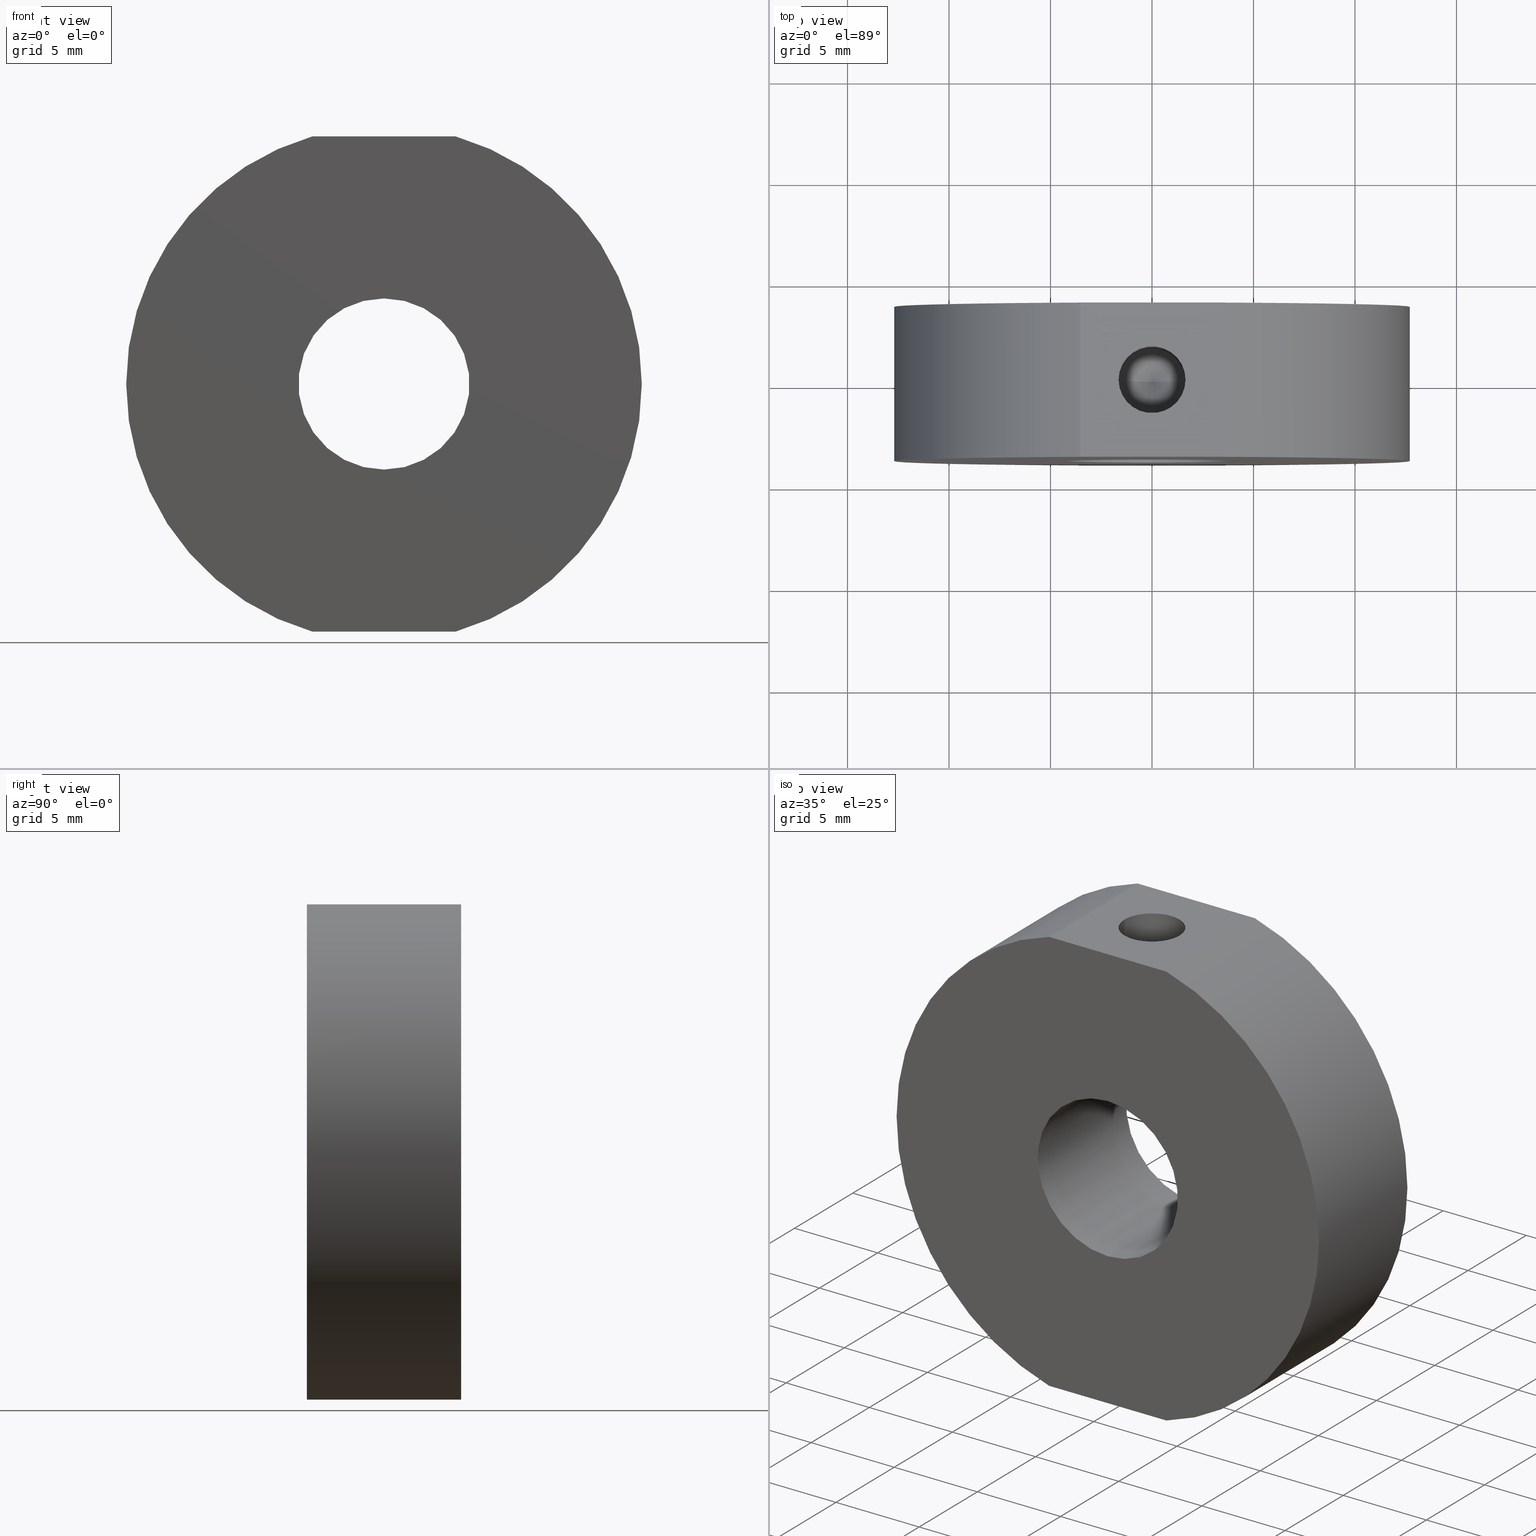
[diagram: canonical four-view strip — front | top / right | iso, engineering-drawing reading convention]
A machine part, canonical four-view strip (front | top / right | iso — engineering-drawing reading convention). The complete STEP part file that produces these views, byte-faithful:
ISO-10303-21;
HEADER;
FILE_DESCRIPTION (( 'STEP AP203' ),
    '1' );
FILE_NAME ('04CLH-1M.STEP',
    '2016-03-03T03:27:58',
    ( '' ),
    ( '' ),
    'SwSTEP 2.0',
    'SolidWorks 2016',
    '' );
FILE_SCHEMA (( 'CONFIG_CONTROL_DESIGN' ));
ENDSEC;

DATA;
#1 = LINE ( 'NONE', #286, #390 ) ;
#2 = EDGE_LOOP ( 'NONE', ( #139, #484, #486, #24 ) ) ;
#3 = DATE_AND_TIME ( #312, #393 ) ;
#4 = APPROVAL_ROLE ( '' ) ;
#5 = AXIS2_PLACEMENT_3D ( 'NONE', #301, #475, #227 ) ;
#6 = VERTEX_POINT ( 'NONE', #47 ) ;
#7 = LINE ( 'NONE', #411, #253 ) ;
#8 = APPROVAL_PERSON_ORGANIZATION ( #9, #35, #4 ) ;
#9 = PERSON_AND_ORGANIZATION ( #495, #212 ) ;
#10 = MANIFOLD_SOLID_BREP ( 'M4 ������1', #173 ) ;
#11 = ORIENTED_EDGE ( 'NONE', *, *, #90, .F. ) ;
#12 = DIRECTION ( 'NONE',  ( 0.0000000000000000000, 1.000000000000000000, 0.0000000000000000000 ) ) ;
#13 = PERSON_AND_ORGANIZATION ( #495, #212 ) ;
#14 = EDGE_CURVE ( 'NONE', #355, #6, #314, .T. ) ;
#15 = CYLINDRICAL_SURFACE ( 'NONE', #79, 2.499999999999999600 ) ;
#16 = DIRECTION ( 'NONE',  ( -0.0000000000000000000, 0.0000000000000000000, 1.000000000000000000 ) ) ;
#17 = CARTESIAN_POINT ( 'NONE',  ( -3.528455752875471400, -3.799999999999999400, -12.19999999999999900 ) ) ;
#18 = DIRECTION ( 'NONE',  ( -0.0000000000000000000, 1.000000000000000000, -0.0000000000000000000 ) ) ;
#19 = DIRECTION ( 'NONE',  ( -0.0000000000000000000, 1.000000000000000000, -0.0000000000000000000 ) ) ;
#20 = ORIENTED_EDGE ( 'NONE', *, *, #290, .F. ) ;
#21 = FACE_BOUND ( 'NONE', #46, .T. ) ;
#22 = EDGE_LOOP ( 'NONE', ( #202, #380, #53 ) ) ;
#23 = DIRECTION ( 'NONE',  ( 0.0000000000000000000, 1.000000000000000000, 0.0000000000000000000 ) ) ;
#24 = ORIENTED_EDGE ( 'NONE', *, *, #54, .T. ) ;
#25 = DIRECTION ( 'NONE',  ( 0.0000000000000000000, 1.000000000000000000, 0.0000000000000000000 ) ) ;
#26 = AXIS2_PLACEMENT_3D ( 'NONE', #97, #504, #252 ) ;
#27 = DIRECTION ( 'NONE',  ( 1.000000000000000000, 0.0000000000000000000, 0.0000000000000000000 ) ) ;
#28 = LINE ( 'NONE', #456, #489 ) ;
#29 =( NAMED_UNIT ( * ) SI_UNIT ( $, .STERADIAN. ) SOLID_ANGLE_UNIT ( ) );
#30 = CARTESIAN_POINT ( 'NONE',  ( 0.0000000000000000000, 3.799999999999999800, 0.0000000000000000000 ) ) ;
#31 = LOCAL_TIME ( 11, 27, 58.00000000000000000, #498 ) ;
#32 = DIRECTION ( 'NONE',  ( -0.0000000000000000000, -1.000000000000000000, -0.0000000000000000000 ) ) ;
#33 = CARTESIAN_POINT ( 'NONE',  ( 0.0000000000000000000, 3.800000000000000700, 0.0000000000000000000 ) ) ;
#34 = DIRECTION ( 'NONE',  ( -0.0000000000000000000, -0.0000000000000000000, -1.000000000000000000 ) ) ;
#35 = APPROVAL ( #234, 'UNSPECIFIED' ) ;
#36 = FACE_OUTER_BOUND ( 'NONE', #511, .T. ) ;
#37 = ORIENTED_EDGE ( 'NONE', *, *, #257, .T. ) ;
#38 = DIRECTION ( 'NONE',  ( 1.000000000000000000, 0.0000000000000000000, 0.0000000000000000000 ) ) ;
#39 = EDGE_CURVE ( 'NONE', #465, #491, #440, .T. ) ;
#40 = PERSON_AND_ORGANIZATION ( #495, #212 ) ;
#41 = CC_DESIGN_PERSON_AND_ORGANIZATION_ASSIGNMENT ( #366, #231, ( #513 ) ) ;
#42 = EDGE_LOOP ( 'NONE', ( #405, #452, #494, #487 ) ) ;
#43 = APPROVAL_ROLE ( '' ) ;
#44 = PERSON_AND_ORGANIZATION ( #495, #212 ) ;
#45 = CC_DESIGN_DATE_AND_TIME_ASSIGNMENT ( #441, #200, ( #291 ) ) ;
#46 = EDGE_LOOP ( 'NONE', ( #180, #384 ) ) ;
#47 = CARTESIAN_POINT ( 'NONE',  ( -3.528455752875474500, -3.799999999999999800, 12.19999999999999900 ) ) ;
#48 = ADVANCED_FACE ( 'NONE', ( #36 ), #245, .F. ) ;
#49 = AXIS2_PLACEMENT_3D ( 'NONE', #33, #522, #271 ) ;
#50 = CIRCLE ( 'NONE', #221, 4.216399999999988600 ) ;
#51 = ORIENTED_EDGE ( 'NONE', *, *, #290, .T. ) ;
#52 = FACE_OUTER_BOUND ( 'NONE', #241, .T. ) ;
#53 = ORIENTED_EDGE ( 'NONE', *, *, #501, .T. ) ;
#54 = EDGE_CURVE ( 'NONE', #262, #477, #50, .T. ) ;
#55 = ORIENTED_EDGE ( 'NONE', *, *, #145, .F. ) ;
#56 = CARTESIAN_POINT ( 'NONE',  ( 3.528455752875468300, 3.799999999999999400, 12.19999999999999900 ) ) ;
#57 = ORIENTED_EDGE ( 'NONE', *, *, #238, .T. ) ;
#58 = CIRCLE ( 'NONE', #209, 1.649999999999998800 ) ;
#59 = DIRECTION ( 'NONE',  ( 1.000000000000000000, -0.0000000000000000000, 0.0000000000000000000 ) ) ;
#60 = ORIENTED_EDGE ( 'NONE', *, *, #362, .F. ) ;
#61 = CARTESIAN_POINT ( 'NONE',  ( 0.0000000000000000000, -3.799999999999999800, 0.0000000000000000000 ) ) ;
#62 = PERSON_AND_ORGANIZATION ( #495, #212 ) ;
#63 = CARTESIAN_POINT ( 'NONE',  ( -3.528455752875471400, -10.87460246232960000, -12.19999999999999900 ) ) ;
#64 = CARTESIAN_POINT ( 'NONE',  ( 0.0000000000000000000, 0.0000000000000000000, -12.19999999999999900 ) ) ;
#65 = EDGE_CURVE ( 'NONE', #332, #355, #293, .T. ) ;
#66 = CARTESIAN_POINT ( 'NONE',  ( 0.0000000000000000000, 3.799999999999999800, 0.0000000000000000000 ) ) ;
#67 = ORIENTED_EDGE ( 'NONE', *, *, #288, .F. ) ;
#68 = DIRECTION ( 'NONE',  ( -0.0000000000000000000, 1.000000000000000000, -0.0000000000000000000 ) ) ;
#69 = LINE ( 'NONE', #142, #483 ) ;
#70 = CARTESIAN_POINT ( 'NONE',  ( 5.163600763924892400E-016, 3.799999999999999800, -4.216399999999993000 ) ) ;
#71 = ORIENTED_EDGE ( 'NONE', *, *, #175, .F. ) ;
#72 = DATE_AND_TIME ( #176, #31 ) ;
#73 = DIRECTION ( 'NONE',  ( -0.0000000000000000000, -0.0000000000000000000, 1.000000000000000000 ) ) ;
#74 = CC_DESIGN_PERSON_AND_ORGANIZATION_ASSIGNMENT ( #62, #431, ( #419 ) ) ;
#75 = DIRECTION ( 'NONE',  ( 0.0000000000000000000, 1.000000000000000000, 0.0000000000000000000 ) ) ;
#76 = EDGE_LOOP ( 'NONE', ( #169, #243, #400, #359 ) ) ;
#77 = ORIENTED_EDGE ( 'NONE', *, *, #242, .F. ) ;
#78 = DIRECTION ( 'NONE',  ( -0.8660254037844382600, 0.0000000000000000000, -0.5000000000000006700 ) ) ;
#79 = AXIS2_PLACEMENT_3D ( 'NONE', #64, #347, #192 ) ;
#80 = DIRECTION ( 'NONE',  ( -0.0000000000000000000, -0.0000000000000000000, 1.000000000000000000 ) ) ;
#81 = ORIENTED_EDGE ( 'NONE', *, *, #379, .T. ) ;
#82 = EDGE_CURVE ( 'NONE', #465, #171, #7, .T. ) ;
#83 = CALENDAR_DATE ( 2016, 3, 3 ) ;
#84 = APPROVAL_STATUS ( 'not_yet_approved' ) ;
#85 = CIRCLE ( 'NONE', #49, 4.216399999999988600 ) ;
#86 = ORIENTED_EDGE ( 'NONE', *, *, #280, .F. ) ;
#87 = ADVANCED_FACE ( 'NONE', ( #211 ), #168, .T. ) ;
#88 = CARTESIAN_POINT ( 'NONE',  ( 0.0000000000000000000, 0.0000000000000000000, 7.199999999999999300 ) ) ;
#89 = DIRECTION ( 'NONE',  ( 1.000000000000000000, 0.0000000000000000000, 0.0000000000000000000 ) ) ;
#90 = EDGE_CURVE ( 'NONE', #491, #311, #281, .T. ) ;
#91 = CIRCLE ( 'NONE', #497, 1.649999999999999000 ) ;
#92 = ADVANCED_FACE ( 'NONE', ( #408 ), #369, .F. ) ;
#93 = ORIENTED_EDGE ( 'NONE', *, *, #315, .F. ) ;
#94 = LINE ( 'NONE', #518, #463 ) ;
#95 = EDGE_CURVE ( 'NONE', #195, #493, #158, .T. ) ;
#96 = CIRCLE ( 'NONE', #26, 2.500000000000000400 ) ;
#97 = CARTESIAN_POINT ( 'NONE',  ( 0.0000000000000000000, 0.0000000000000000000, -12.19999999999999900 ) ) ;
#98 = DIRECTION ( 'NONE',  ( 0.0000000000000000000, -0.0000000000000000000, 1.000000000000000000 ) ) ;
#99 = AXIS2_PLACEMENT_3D ( 'NONE', #30, #75, #303 ) ;
#100 = CARTESIAN_POINT ( 'NONE',  ( 3.528455752875471400, -10.87460246232960000, -12.19999999999999900 ) ) ;
#101 = DIRECTION ( 'NONE',  ( -0.0000000000000000000, -0.0000000000000000000, -1.000000000000000000 ) ) ;
#102 = DIRECTION ( 'NONE',  ( 0.0000000000000000000, 0.0000000000000000000, 1.000000000000000000 ) ) ;
#103 = FACE_OUTER_BOUND ( 'NONE', #261, .T. ) ;
#104 = CARTESIAN_POINT ( 'NONE',  ( 0.0000000000000000000, 0.0000000000000000000, 12.19999999999999900 ) ) ;
#105 = VERTEX_POINT ( 'NONE', #218 ) ;
#106 = DIRECTION ( 'NONE',  ( -0.0000000000000000000, 1.000000000000000000, -0.0000000000000000000 ) ) ;
#107 = UNCERTAINTY_MEASURE_WITH_UNIT (LENGTH_MEASURE( 1.000000000000000100E-005 ), #225, 'distance_accuracy_value', 'NONE');
#108 = DIRECTION ( 'NONE',  ( -0.0000000000000000000, -0.0000000000000000000, -1.000000000000000000 ) ) ;
#109 = AXIS2_PLACEMENT_3D ( 'NONE', #488, #12, #397 ) ;
#110 = DIRECTION ( 'NONE',  ( 1.000000000000000000, 0.0000000000000000000, 0.0000000000000000000 ) ) ;
#111 = CARTESIAN_POINT ( 'NONE',  ( -3.528455752875468300, -10.87460246232960000, 12.19999999999999900 ) ) ;
#112 = CIRCLE ( 'NONE', #118, 4.216399999999998400 ) ;
#113 = CARTESIAN_POINT ( 'NONE',  ( 1.649999999999999000, 0.0000000000000000000, 12.19999999999999900 ) ) ;
#114 = DIRECTION ( 'NONE',  ( 0.0000000000000000000, 0.0000000000000000000, -1.000000000000000000 ) ) ;
#115 = APPROVAL_DATE_TIME ( #3, #251 ) ;
#116 = VECTOR ( 'NONE', #455, 1000.000000000000000 ) ;
#117 = EDGE_LOOP ( 'NONE', ( #11, #446, #37, #282 ) ) ;
#118 = AXIS2_PLACEMENT_3D ( 'NONE', #374, #260, #292 ) ;
#119 = DESIGN_CONTEXT ( 'detailed design', #435, 'design' ) ;
#120 = DATE_AND_TIME ( #83, #283 ) ;
#121 = LINE ( 'NONE', #147, #459 ) ;
#122 = FACE_OUTER_BOUND ( 'NONE', #277, .T. ) ;
#123 = ADVANCED_FACE ( 'NONE', ( #424 ), #179, .F. ) ;
#124 = DIRECTION ( 'NONE',  ( -0.0000000000000000000, -0.0000000000000000000, 1.000000000000000000 ) ) ;
#125 = AXIS2_PLACEMENT_3D ( 'NONE', #383, #108, #148 ) ;
#126 = VECTOR ( 'NONE', #185, 1000.000000000000000 ) ;
#127 = ORIENTED_EDGE ( 'NONE', *, *, #288, .T. ) ;
#128 = CARTESIAN_POINT ( 'NONE',  ( 0.0000000000000000000, 3.799999999999999800, 0.0000000000000000000 ) ) ;
#129 = CC_DESIGN_DATE_AND_TIME_ASSIGNMENT ( #120, #203, ( #419 ) ) ;
#130 = ORIENTED_EDGE ( 'NONE', *, *, #508, .T. ) ;
#131 = AXIS2_PLACEMENT_3D ( 'NONE', #104, #144, #516 ) ;
#132 = CIRCLE ( 'NONE', #99, 12.69999999999999900 ) ;
#133 = ADVANCED_FACE ( 'NONE', ( #201 ), #305, .F. ) ;
#134 = PERSON_AND_ORGANIZATION ( #495, #212 ) ;
#135 = CARTESIAN_POINT ( 'NONE',  ( -1.649999999999999000, 2.020667218593131800E-016, 12.19999999999999900 ) ) ;
#136 = CARTESIAN_POINT ( 'NONE',  ( 0.0000000000000000000, 0.0000000000000000000, -7.199999999999999300 ) ) ;
#137 = DIRECTION ( 'NONE',  ( 0.0000000000000000000, 0.0000000000000000000, 1.000000000000000000 ) ) ;
#138 = ORIENTED_EDGE ( 'NONE', *, *, #198, .F. ) ;
#139 = ORIENTED_EDGE ( 'NONE', *, *, #368, .F. ) ;
#140 = CARTESIAN_POINT ( 'NONE',  ( 0.0000000000000000000, 0.0000000000000000000, -7.199999999999999300 ) ) ;
#141 = DATE_AND_TIME ( #289, #235 ) ;
#142 = CARTESIAN_POINT ( 'NONE',  ( 0.0000000000000000000, 3.799999999999999800, 4.216399999999993000 ) ) ;
#143 = LINE ( 'NONE', #230, #382 ) ;
#144 = DIRECTION ( 'NONE',  ( -0.0000000000000000000, -0.0000000000000000000, 1.000000000000000000 ) ) ;
#145 = EDGE_CURVE ( 'NONE', #481, #207, #121, .T. ) ;
#146 = CARTESIAN_POINT ( 'NONE',  ( 0.0000000000000000000, -3.799999999999998900, 4.216399999999998400 ) ) ;
#147 = CARTESIAN_POINT ( 'NONE',  ( -3.528455752875471400, 3.799999999999999400, -12.19999999999999900 ) ) ;
#148 = DIRECTION ( 'NONE',  ( -1.000000000000000000, 0.0000000000000000000, 0.0000000000000000000 ) ) ;
#149 = DIRECTION ( 'NONE',  ( -0.0000000000000000000, -0.0000000000000000000, -1.000000000000000000 ) ) ;
#150 = ORIENTED_EDGE ( 'NONE', *, *, #362, .T. ) ;
#151 = DIRECTION ( 'NONE',  ( 1.000000000000000000, 0.0000000000000000000, 0.0000000000000000000 ) ) ;
#152 = CYLINDRICAL_SURFACE ( 'NONE', #413, 1.649999999999999000 ) ;
#153 = DIRECTION ( 'NONE',  ( -0.0000000000000000000, -0.0000000000000000000, -1.000000000000000000 ) ) ;
#154 = DIRECTION ( 'NONE',  ( 1.000000000000000000, 0.0000000000000000000, 0.0000000000000000000 ) ) ;
#155 = DIRECTION ( 'NONE',  ( -0.0000000000000000000, -0.0000000000000000000, 1.000000000000000000 ) ) ;
#156 = ORIENTED_EDGE ( 'NONE', *, *, #326, .T. ) ;
#157 = APPLICATION_PROTOCOL_DEFINITION ( 'international standard', 'config_control_design', 1994, #435 ) ;
#158 = LINE ( 'NONE', #339, #226 ) ;
#159 = ORIENTED_EDGE ( 'NONE', *, *, #214, .F. ) ;
#160 = FACE_OUTER_BOUND ( 'NONE', #76, .T. ) ;
#161 = APPLICATION_PROTOCOL_DEFINITION ( 'international standard', 'config_control_design', 1994, #342 ) ;
#162 = ORIENTED_EDGE ( 'NONE', *, *, #167, .F. ) ;
#163 = ORIENTED_EDGE ( 'NONE', *, *, #82, .F. ) ;
#164 = EDGE_CURVE ( 'NONE', #310, #453, #112, .T. ) ;
#165 = COORDINATED_UNIVERSAL_TIME_OFFSET ( 8, 0, .AHEAD. ) ;
#166 = ADVANCED_FACE ( 'NONE', ( #350 ), #358, .F. ) ;
#167 = EDGE_CURVE ( 'NONE', #302, #328, #445, .T. ) ;
#168 = CYLINDRICAL_SURFACE ( 'NONE', #249, 12.69999999999999900 ) ;
#169 = ORIENTED_EDGE ( 'NONE', *, *, #238, .F. ) ;
#170 = ORIENTED_EDGE ( 'NONE', *, *, #244, .F. ) ;
#171 = VERTEX_POINT ( 'NONE', #372 ) ;
#172 = CARTESIAN_POINT ( 'NONE',  ( 0.0000000000000000000, 3.800000000000000700, 0.0000000000000000000 ) ) ;
#173 = CLOSED_SHELL ( 'NONE', ( #357, #499, #208, #92, #123, #87, #447, #317, #327, #133, #324, #492, #443, #407, #48, #166 ) ) ;
#174 = EDGE_LOOP ( 'NONE', ( #159, #71 ) ) ;
#175 = EDGE_CURVE ( 'NONE', #311, #458, #91, .T. ) ;
#176 = CALENDAR_DATE ( 2016, 3, 3 ) ;
#177 = CARTESIAN_POINT ( 'NONE',  ( 5.163600763924899300E-016, -3.799999999999998900, -4.216399999999998400 ) ) ;
#178 = PLANE ( 'NONE',  #403 ) ;
#179 = CYLINDRICAL_SURFACE ( 'NONE', #467, 4.216399999999993000 ) ;
#180 = ORIENTED_EDGE ( 'NONE', *, *, #54, .F. ) ;
#181 = DIRECTION ( 'NONE',  ( -1.000000000000000000, 0.0000000000000000000, 0.0000000000000000000 ) ) ;
#182 = AXIS2_PLACEMENT_3D ( 'NONE', #349, #482, #38 ) ;
#183 = DIRECTION ( 'NONE',  ( 0.0000000000000000000, 0.0000000000000000000, 1.000000000000000000 ) ) ;
#184 = DIRECTION ( 'NONE',  ( -0.0000000000000000000, -0.0000000000000000000, 1.000000000000000000 ) ) ;
#185 = DIRECTION ( 'NONE',  ( -1.000000000000000000, 0.0000000000000000000, -0.0000000000000000000 ) ) ;
#186 = CC_DESIGN_APPROVAL ( #251, ( #419 ) ) ;
#187 = ORIENTED_EDGE ( 'NONE', *, *, #353, .T. ) ;
#188 = DIRECTION ( 'NONE',  ( -1.000000000000000000, 0.0000000000000000000, -0.0000000000000000000 ) ) ;
#189 = ORIENTED_EDGE ( 'NONE', *, *, #244, .T. ) ;
#190 = EDGE_CURVE ( 'NONE', #477, #262, #85, .T. ) ;
#191 = CARTESIAN_POINT ( 'NONE',  ( 0.0000000000000000000, 0.0000000000000000000, -7.199999999999999300 ) ) ;
#192 = DIRECTION ( 'NONE',  ( -1.000000000000000000, 0.0000000000000000000, 0.0000000000000000000 ) ) ;
#193 = DIRECTION ( 'NONE',  ( -0.0000000000000000000, -0.0000000000000000000, 1.000000000000000000 ) ) ;
#194 = FACE_BOUND ( 'NONE', #496, .T. ) ;
#195 = VERTEX_POINT ( 'NONE', #215 ) ;
#196 = CARTESIAN_POINT ( 'NONE',  ( 0.0000000000000000000, 0.0000000000000000000, -7.199999999999999300 ) ) ;
#197 = CARTESIAN_POINT ( 'NONE',  ( -1.578171878722322000E-015, 0.0000000000000000000, -5.756624327025933000 ) ) ;
#198 = EDGE_CURVE ( 'NONE', #481, #328, #132, .T. ) ;
#199 = CC_DESIGN_APPROVAL ( #35, ( #291 ) ) ;
#200 = DATE_TIME_ROLE ( 'classification_date' ) ;
#201 = FACE_OUTER_BOUND ( 'NONE', #2, .T. ) ;
#202 = ORIENTED_EDGE ( 'NONE', *, *, #508, .F. ) ;
#203 = DATE_TIME_ROLE ( 'creation_date' ) ;
#204 = LINE ( 'NONE', #70, #329 ) ;
#205 = VECTOR ( 'NONE', #344, 1000.000000000000000 ) ;
#206 = VECTOR ( 'NONE', #415, 1000.000000000000000 ) ;
#207 = VERTEX_POINT ( 'NONE', #422 ) ;
#208 = ADVANCED_FACE ( 'NONE', ( #103 ), #15, .F. ) ;
#209 = AXIS2_PLACEMENT_3D ( 'NONE', #426, #73, #151 ) ;
#210 = EDGE_LOOP ( 'NONE', ( #67, #170, #233, #340 ) ) ;
#211 = FACE_OUTER_BOUND ( 'NONE', #219, .T. ) ;
#212 = ORGANIZATION ( 'UNSPECIFIED', 'UNSPECIFIED', '' ) ;
#213 = CARTESIAN_POINT ( 'NONE',  ( -3.528455752875468300, 3.799999999999999400, 12.19999999999999900 ) ) ;
#214 = EDGE_CURVE ( 'NONE', #458, #311, #333, .T. ) ;
#215 = CARTESIAN_POINT ( 'NONE',  ( 2.499999999999999100, 3.061616997868382200E-016, -7.199999999999999300 ) ) ;
#216 = APPROVAL ( #356, 'UNSPECIFIED' ) ;
#217 = VECTOR ( 'NONE', #268, 1000.000000000000000 ) ;
#218 = CARTESIAN_POINT ( 'NONE',  ( 3.528455752875468300, -3.799999999999999400, 12.19999999999999900 ) ) ;
#219 = EDGE_LOOP ( 'NONE', ( #276, #156, #138, #503 ) ) ;
#220 = DIRECTION ( 'NONE',  ( -0.0000000000000000000, 1.000000000000000000, -0.0000000000000000000 ) ) ;
#221 = AXIS2_PLACEMENT_3D ( 'NONE', #172, #334, #137 ) ;
#222 = CARTESIAN_POINT ( 'NONE',  ( 2.500000000000000900, 3.061616997868384100E-016, -12.19999999999999900 ) ) ;
#223 = DIRECTION ( 'NONE',  ( -0.0000000000000000000, -0.0000000000000000000, 1.000000000000000000 ) ) ;
#224 = DIRECTION ( 'NONE',  ( 0.0000000000000000000, 0.0000000000000000000, -1.000000000000000000 ) ) ;
#225 =( LENGTH_UNIT ( ) NAMED_UNIT ( * ) SI_UNIT ( .MILLI., .METRE. ) );
#226 = VECTOR ( 'NONE', #101, 1000.000000000000000 ) ;
#227 = DIRECTION ( 'NONE',  ( -1.000000000000000000, 0.0000000000000000000, 0.0000000000000000000 ) ) ;
#228 = CARTESIAN_POINT ( 'NONE',  ( 0.0000000000000000000, 0.0000000000000000000, 7.199999999999999300 ) ) ;
#229 = FACE_BOUND ( 'NONE', #174, .T. ) ;
#230 = CARTESIAN_POINT ( 'NONE',  ( -2.499999999999999100, 0.0000000000000000000, -7.199999999999999300 ) ) ;
#231 = PERSON_AND_ORGANIZATION_ROLE ( 'creator' ) ;
#232 = VECTOR ( 'NONE', #248, 1000.000000000000000 ) ;
#233 = ORIENTED_EDGE ( 'NONE', *, *, #14, .F. ) ;
#234 = APPROVAL_STATUS ( 'not_yet_approved' ) ;
#235 = LOCAL_TIME ( 11, 27, 58.00000000000000000, #436 ) ;
#236 = FACE_OUTER_BOUND ( 'NONE', #461, .T. ) ;
#237 = ORIENTED_EDGE ( 'NONE', *, *, #335, .F. ) ;
#238 = EDGE_CURVE ( 'NONE', #491, #171, #58, .T. ) ;
#239 = ORIENTED_EDGE ( 'NONE', *, *, #346, .T. ) ;
#240 = CALENDAR_DATE ( 2016, 3, 3 ) ;
#241 = EDGE_LOOP ( 'NONE', ( #163, #255, #57 ) ) ;
#242 = EDGE_CURVE ( 'NONE', #493, #416, #476, .T. ) ;
#243 = ORIENTED_EDGE ( 'NONE', *, *, #90, .T. ) ;
#244 = EDGE_CURVE ( 'NONE', #6, #105, #399, .T. ) ;
#245 = CONICAL_SURFACE ( 'NONE', #438, 1.649999999999998800, 1.047197551196596700 ) ;
#246 = ORIENTED_EDGE ( 'NONE', *, *, #95, .T. ) ;
#247 = FACE_OUTER_BOUND ( 'NONE', #274, .T. ) ;
#248 = DIRECTION ( 'NONE',  ( -1.000000000000000000, 0.0000000000000000000, -0.0000000000000000000 ) ) ;
#249 = AXIS2_PLACEMENT_3D ( 'NONE', #128, #363, #224 ) ;
#250 = ORIENTED_EDGE ( 'NONE', *, *, #198, .T. ) ;
#251 = APPROVAL ( #84, 'UNSPECIFIED' ) ;
#252 = DIRECTION ( 'NONE',  ( -1.000000000000000000, 0.0000000000000000000, 0.0000000000000000000 ) ) ;
#253 = VECTOR ( 'NONE', #296, 1000.000000000000000 ) ;
#254 = DIRECTION ( 'NONE',  ( -0.0000000000000000000, 1.000000000000000000, -0.0000000000000000000 ) ) ;
#255 = ORIENTED_EDGE ( 'NONE', *, *, #39, .T. ) ;
#256 = DIRECTION ( 'NONE',  ( 0.0000000000000000000, 0.0000000000000000000, 1.000000000000000000 ) ) ;
#257 = EDGE_CURVE ( 'NONE', #171, #458, #502, .T. ) ;
#258 = DIRECTION ( 'NONE',  ( 0.0000000000000000000, 1.000000000000000000, 0.0000000000000000000 ) ) ;
#259 = LINE ( 'NONE', #100, #471 ) ;
#260 = DIRECTION ( 'NONE',  ( -0.0000000000000000000, 1.000000000000000000, -0.0000000000000000000 ) ) ;
#261 = EDGE_LOOP ( 'NONE', ( #365, #246, #285, #60 ) ) ;
#262 = VERTEX_POINT ( 'NONE', #520 ) ;
#263 = ORIENTED_EDGE ( 'NONE', *, *, #167, .T. ) ;
#264 = CARTESIAN_POINT ( 'NONE',  ( 0.0000000000000000000, 3.799999999999999800, 0.0000000000000000000 ) ) ;
#265 = PERSON_AND_ORGANIZATION ( #495, #212 ) ;
#266 =( NAMED_UNIT ( * ) PLANE_ANGLE_UNIT ( ) SI_UNIT ( $, .RADIAN. ) );
#267 = CARTESIAN_POINT ( 'NONE',  ( 0.0000000000000000000, 3.799999999999999800, 0.0000000000000000000 ) ) ;
#268 = DIRECTION ( 'NONE',  ( -0.0000000000000000000, -0.0000000000000000000, 1.000000000000000000 ) ) ;
#269 = LINE ( 'NONE', #429, #116 ) ;
#270 = VERTEX_POINT ( 'NONE', #197 ) ;
#271 = DIRECTION ( 'NONE',  ( 0.0000000000000000000, 0.0000000000000000000, 1.000000000000000000 ) ) ;
#272 = CC_DESIGN_PERSON_AND_ORGANIZATION_ASSIGNMENT ( #265, #392, ( #513 ) ) ;
#273 = APPROVAL_ROLE ( '' ) ;
#274 = EDGE_LOOP ( 'NONE', ( #189, #433, #263, #506 ) ) ;
#275 = AXIS2_PLACEMENT_3D ( 'NONE', #136, #410, #181 ) ;
#276 = ORIENTED_EDGE ( 'NONE', *, *, #14, .T. ) ;
#277 = EDGE_LOOP ( 'NONE', ( #20, #86, #127, #187 ) ) ;
#278 = FACE_OUTER_BOUND ( 'NONE', #210, .T. ) ;
#279 = ORIENTED_EDGE ( 'NONE', *, *, #368, .T. ) ;
#280 = EDGE_CURVE ( 'NONE', #105, #302, #269, .T. ) ;
#281 = LINE ( 'NONE', #375, #395 ) ;
#282 = ORIENTED_EDGE ( 'NONE', *, *, #214, .T. ) ;
#283 = LOCAL_TIME ( 11, 27, 58.00000000000000000, #478 ) ;
#284 = AXIS2_PLACEMENT_3D ( 'NONE', #196, #300, #345 ) ;
#285 = ORIENTED_EDGE ( 'NONE', *, *, #242, .T. ) ;
#286 = CARTESIAN_POINT ( 'NONE',  ( -3.528455752875471400, -10.87460246232960000, -12.19999999999999900 ) ) ;
#287 = CIRCLE ( 'NONE', #423, 4.216399999999998400 ) ;
#288 = EDGE_CURVE ( 'NONE', #105, #332, #510, .T. ) ;
#289 = CALENDAR_DATE ( 2016, 3, 3 ) ;
#290 = EDGE_CURVE ( 'NONE', #302, #207, #414, .T. ) ;
#291 = SECURITY_CLASSIFICATION ( '', '', #388 ) ;
#292 = DIRECTION ( 'NONE',  ( 0.0000000000000000000, 0.0000000000000000000, 1.000000000000000000 ) ) ;
#293 = LINE ( 'NONE', #398, #232 ) ;
#294 = DIRECTION ( 'NONE',  ( 1.000000000000000000, 0.0000000000000000000, 0.0000000000000000000 ) ) ;
#295 = ORIENTED_EDGE ( 'NONE', *, *, #164, .T. ) ;
#296 = DIRECTION ( 'NONE',  ( 0.8660254037844381500, 0.0000000000000000000, 0.5000000000000008900 ) ) ;
#297 = AXIS2_PLACEMENT_3D ( 'NONE', #66, #25, #183 ) ;
#298 = DIRECTION ( 'NONE',  ( -0.0000000000000000000, 1.000000000000000000, -0.0000000000000000000 ) ) ;
#299 = CIRCLE ( 'NONE', #275, 2.499999999999999100 ) ;
#300 = DIRECTION ( 'NONE',  ( -0.0000000000000000000, -0.0000000000000000000, -1.000000000000000000 ) ) ;
#301 = CARTESIAN_POINT ( 'NONE',  ( 0.0000000000000000000, 0.0000000000000000000, -12.19999999999999900 ) ) ;
#302 = VERTEX_POINT ( 'NONE', #56 ) ;
#303 = DIRECTION ( 'NONE',  ( 0.0000000000000000000, 0.0000000000000000000, 1.000000000000000000 ) ) ;
#304 = EDGE_CURVE ( 'NONE', #270, #195, #309, .T. ) ;
#305 = CYLINDRICAL_SURFACE ( 'NONE', #428, 4.216399999999993000 ) ;
#306 = PLANE ( 'NONE',  #367 ) ;
#307 = MECHANICAL_CONTEXT ( 'NONE', #342, 'mechanical' ) ;
#308 = EDGE_CURVE ( 'NONE', #355, #481, #1, .T. ) ;
#309 = LINE ( 'NONE', #464, #206 ) ;
#310 = VERTEX_POINT ( 'NONE', #177 ) ;
#311 = VERTEX_POINT ( 'NONE', #135 ) ;
#312 = CALENDAR_DATE ( 2016, 3, 3 ) ;
#313 = AXIS2_PLACEMENT_3D ( 'NONE', #267, #32, #420 ) ;
#314 = CIRCLE ( 'NONE', #109, 12.69999999999999900 ) ;
#315 = EDGE_CURVE ( 'NONE', #416, #493, #96, .T. ) ;
#316 = SHAPE_DEFINITION_REPRESENTATION ( #402, #430 ) ;
#317 = ADVANCED_FACE ( 'NONE', ( #519, #21 ), #500, .T. ) ;
#318 =( GEOMETRIC_REPRESENTATION_CONTEXT ( 3 ) GLOBAL_UNCERTAINTY_ASSIGNED_CONTEXT ( ( #107 ) ) GLOBAL_UNIT_ASSIGNED_CONTEXT ( ( #225, #266, #29 ) ) REPRESENTATION_CONTEXT ( 'NONE', 'WORKASPACE' ) );
#319 = DIRECTION ( 'NONE',  ( -0.8660254037844381500, 1.060575238724906300E-016, 0.5000000000000008900 ) ) ;
#320 = VECTOR ( 'NONE', #319, 1000.000000000000000 ) ;
#321 = ORIENTED_EDGE ( 'NONE', *, *, #190, .T. ) ;
#322 = APPROVAL_PERSON_ORGANIZATION ( #40, #251, #273 ) ;
#323 = EDGE_CURVE ( 'NONE', #453, #310, #287, .T. ) ;
#324 = ADVANCED_FACE ( 'NONE', ( #194, #386 ), #509, .F. ) ;
#325 = ORIENTED_EDGE ( 'NONE', *, *, #323, .T. ) ;
#326 = EDGE_CURVE ( 'NONE', #6, #328, #28, .T. ) ;
#327 = ADVANCED_FACE ( 'NONE', ( #377, #278 ), #178, .F. ) ;
#328 = VERTEX_POINT ( 'NONE', #213 ) ;
#329 = VECTOR ( 'NONE', #298, 1000.000000000000000 ) ;
#330 = CARTESIAN_POINT ( 'NONE',  ( 0.0000000000000000000, -3.799999999999998900, 0.0000000000000000000 ) ) ;
#331 = CARTESIAN_POINT ( 'NONE',  ( 0.0000000000000000000, 3.799999999999999800, 0.0000000000000000000 ) ) ;
#332 = VERTEX_POINT ( 'NONE', #505 ) ;
#333 = CIRCLE ( 'NONE', #360, 1.649999999999999000 ) ;
#334 = DIRECTION ( 'NONE',  ( -0.0000000000000000000, 1.000000000000000000, -0.0000000000000000000 ) ) ;
#335 = EDGE_CURVE ( 'NONE', #453, #262, #69, .T. ) ;
#336 = ORIENTED_EDGE ( 'NONE', *, *, #315, .T. ) ;
#337 = CARTESIAN_POINT ( 'NONE',  ( 0.0000000000000000000, -3.799999999999999800, 0.0000000000000000000 ) ) ;
#338 = CYLINDRICAL_SURFACE ( 'NONE', #313, 12.69999999999999900 ) ;
#339 = CARTESIAN_POINT ( 'NONE',  ( 2.499999999999999600, 3.061616997868382600E-016, -12.19999999999999900 ) ) ;
#340 = ORIENTED_EDGE ( 'NONE', *, *, #65, .F. ) ;
#341 = CARTESIAN_POINT ( 'NONE',  ( 0.0000000000000000000, 0.0000000000000000000, 12.19999999999999900 ) ) ;
#342 = APPLICATION_CONTEXT ( 'configuration controlled 3d designs of mechanical parts and assemblies' ) ;
#343 = LOCAL_TIME ( 11, 27, 58.00000000000000000, #454 ) ;
#344 = DIRECTION ( 'NONE',  ( 1.000000000000000000, -0.0000000000000000000, 0.0000000000000000000 ) ) ;
#345 = DIRECTION ( 'NONE',  ( -1.000000000000000000, 0.0000000000000000000, 0.0000000000000000000 ) ) ;
#346 = EDGE_CURVE ( 'NONE', #387, #195, #299, .T. ) ;
#347 = DIRECTION ( 'NONE',  ( -0.0000000000000000000, -0.0000000000000000000, -1.000000000000000000 ) ) ;
#348 = ORIENTED_EDGE ( 'NONE', *, *, #39, .F. ) ;
#349 = CARTESIAN_POINT ( 'NONE',  ( 0.0000000000000000000, 0.0000000000000000000, 0.0000000000000000000 ) ) ;
#350 = FACE_OUTER_BOUND ( 'NONE', #117, .T. ) ;
#351 = EDGE_LOOP ( 'NONE', ( #162, #51, #55, #250 ) ) ;
#352 = CIRCLE ( 'NONE', #394, 1.649999999999998800 ) ;
#353 = EDGE_CURVE ( 'NONE', #332, #207, #259, .T. ) ;
#354 = PERSON_AND_ORGANIZATION_ROLE ( 'classification_officer' ) ;
#355 = VERTEX_POINT ( 'NONE', #17 ) ;
#356 = APPROVAL_STATUS ( 'not_yet_approved' ) ;
#357 = ADVANCED_FACE ( 'NONE', ( #160 ), #152, .F. ) ;
#358 = CYLINDRICAL_SURFACE ( 'NONE', #131, 1.649999999999999000 ) ;
#359 = ORIENTED_EDGE ( 'NONE', *, *, #257, .F. ) ;
#360 = AXIS2_PLACEMENT_3D ( 'NONE', #341, #193, #110 ) ;
#361 = FACE_OUTER_BOUND ( 'NONE', #364, .T. ) ;
#362 = EDGE_CURVE ( 'NONE', #387, #416, #94, .T. ) ;
#363 = DIRECTION ( 'NONE',  ( -0.0000000000000000000, -1.000000000000000000, -0.0000000000000000000 ) ) ;
#364 = EDGE_LOOP ( 'NONE', ( #439, #130, #239 ) ) ;
#365 = ORIENTED_EDGE ( 'NONE', *, *, #501, .F. ) ;
#366 = PERSON_AND_ORGANIZATION ( #495, #212 ) ;
#367 = AXIS2_PLACEMENT_3D ( 'NONE', #111, #114, #188 ) ;
#368 = EDGE_CURVE ( 'NONE', #310, #477, #204, .T. ) ;
#369 = CONICAL_SURFACE ( 'NONE', #396, 2.499999999999999100, 1.047197551196597000 ) ;
#370 = DIRECTION ( 'NONE',  ( -0.0000000000000000000, 1.000000000000000000, -0.0000000000000000000 ) ) ;
#371 = EDGE_LOOP ( 'NONE', ( #469, #279, #321, #237 ) ) ;
#372 = CARTESIAN_POINT ( 'NONE',  ( 1.649999999999998800, 0.0000000000000000000, 7.199999999999999300 ) ) ;
#373 = CARTESIAN_POINT ( 'NONE',  ( 0.0000000000000000000, 0.0000000000000000000, 12.19999999999999900 ) ) ;
#374 = CARTESIAN_POINT ( 'NONE',  ( 0.0000000000000000000, -3.799999999999998900, 0.0000000000000000000 ) ) ;
#375 = CARTESIAN_POINT ( 'NONE',  ( -1.649999999999999000, 2.020667218593131800E-016, 12.19999999999999900 ) ) ;
#376 = DIRECTION ( 'NONE',  ( 0.0000000000000000000, -0.0000000000000000000, 1.000000000000000000 ) ) ;
#377 = FACE_BOUND ( 'NONE', #391, .T. ) ;
#378 = DIRECTION ( 'NONE',  ( -0.0000000000000000000, -0.0000000000000000000, 1.000000000000000000 ) ) ;
#379 = EDGE_CURVE ( 'NONE', #171, #491, #352, .T. ) ;
#380 = ORIENTED_EDGE ( 'NONE', *, *, #304, .T. ) ;
#381 = CARTESIAN_POINT ( 'NONE',  ( 0.0000000000000000000, 0.0000000000000000000, 7.199999999999999300 ) ) ;
#382 = VECTOR ( 'NONE', #78, 1000.000000000000000 ) ;
#383 = CARTESIAN_POINT ( 'NONE',  ( 0.0000000000000000000, 0.0000000000000000000, -12.19999999999999900 ) ) ;
#384 = ORIENTED_EDGE ( 'NONE', *, *, #190, .F. ) ;
#385 = CARTESIAN_POINT ( 'NONE',  ( 1.649999999999999000, 0.0000000000000000000, 12.19999999999999900 ) ) ;
#386 = FACE_OUTER_BOUND ( 'NONE', #42, .T. ) ;
#387 = VERTEX_POINT ( 'NONE', #474 ) ;
#388 = SECURITY_CLASSIFICATION_LEVEL ( 'unclassified' ) ;
#389 = AXIS2_PLACEMENT_3D ( 'NONE', #331, #258, #98 ) ;
#390 = VECTOR ( 'NONE', #220, 1000.000000000000000 ) ;
#391 = EDGE_LOOP ( 'NONE', ( #325, #295 ) ) ;
#392 = PERSON_AND_ORGANIZATION_ROLE ( 'design_supplier' ) ;
#393 = LOCAL_TIME ( 11, 27, 58.00000000000000000, #165 ) ;
#394 = AXIS2_PLACEMENT_3D ( 'NONE', #381, #223, #421 ) ;
#395 = VECTOR ( 'NONE', #378, 1000.000000000000000 ) ;
#396 = AXIS2_PLACEMENT_3D ( 'NONE', #140, #149, #412 ) ;
#397 = DIRECTION ( 'NONE',  ( 0.0000000000000000000, 0.0000000000000000000, 1.000000000000000000 ) ) ;
#398 = CARTESIAN_POINT ( 'NONE',  ( -3.528455752875471400, -3.799999999999999400, -12.19999999999999900 ) ) ;
#399 = LINE ( 'NONE', #473, #205 ) ;
#400 = ORIENTED_EDGE ( 'NONE', *, *, #175, .T. ) ;
#401 = PRODUCT ( '04CLH-1M', '04CLH-1M', '', ( #307 ) ) ;
#402 = PRODUCT_DEFINITION_SHAPE ( 'NONE', 'NONE',  #419 ) ;
#403 = AXIS2_PLACEMENT_3D ( 'NONE', #337, #406, #376 ) ;
#404 = APPROVAL_PERSON_ORGANIZATION ( #13, #216, #43 ) ;
#405 = ORIENTED_EDGE ( 'NONE', *, *, #65, .T. ) ;
#406 = DIRECTION ( 'NONE',  ( 0.0000000000000000000, 1.000000000000000000, 0.0000000000000000000 ) ) ;
#407 = ADVANCED_FACE ( 'NONE', ( #236 ), #450, .F. ) ;
#408 = FACE_OUTER_BOUND ( 'NONE', #22, .T. ) ;
#409 = DIRECTION ( 'NONE',  ( 0.0000000000000000000, 0.0000000000000000000, 1.000000000000000000 ) ) ;
#410 = DIRECTION ( 'NONE',  ( -0.0000000000000000000, -0.0000000000000000000, -1.000000000000000000 ) ) ;
#411 = CARTESIAN_POINT ( 'NONE',  ( 1.649999999999998800, 0.0000000000000000000, 7.199999999999999300 ) ) ;
#412 = DIRECTION ( 'NONE',  ( -1.000000000000000000, 0.0000000000000000000, 0.0000000000000000000 ) ) ;
#413 = AXIS2_PLACEMENT_3D ( 'NONE', #373, #184, #462 ) ;
#414 = CIRCLE ( 'NONE', #297, 12.69999999999999900 ) ;
#415 = DIRECTION ( 'NONE',  ( 0.8660254037844382600, 1.060575238724906400E-016, -0.5000000000000006700 ) ) ;
#416 = VERTEX_POINT ( 'NONE', #425 ) ;
#417 = CONICAL_SURFACE ( 'NONE', #284, 2.499999999999999100, 1.047197551196597000 ) ;
#418 = CARTESIAN_POINT ( 'NONE',  ( 0.0000000000000000000, 0.0000000000000000000, 12.19999999999999900 ) ) ;
#419 = PRODUCT_DEFINITION ( 'UNKNOWN', '', #513, #119 ) ;
#420 = DIRECTION ( 'NONE',  ( 0.0000000000000000000, 0.0000000000000000000, -1.000000000000000000 ) ) ;
#421 = DIRECTION ( 'NONE',  ( 1.000000000000000000, 0.0000000000000000000, 0.0000000000000000000 ) ) ;
#422 = CARTESIAN_POINT ( 'NONE',  ( 3.528455752875471400, 3.799999999999999400, -12.19999999999999900 ) ) ;
#423 = AXIS2_PLACEMENT_3D ( 'NONE', #330, #254, #102 ) ;
#424 = FACE_OUTER_BOUND ( 'NONE', #371, .T. ) ;
#425 = CARTESIAN_POINT ( 'NONE',  ( -2.500000000000000400, 0.0000000000000000000, -12.19999999999999900 ) ) ;
#426 = CARTESIAN_POINT ( 'NONE',  ( 0.0000000000000000000, 0.0000000000000000000, 7.199999999999999300 ) ) ;
#427 = APPROVAL_DATE_TIME ( #141, #35 ) ;
#428 = AXIS2_PLACEMENT_3D ( 'NONE', #507, #68, #256 ) ;
#429 = CARTESIAN_POINT ( 'NONE',  ( 3.528455752875468300, -10.87460246232960000, 12.19999999999999900 ) ) ;
#430 = ADVANCED_BREP_SHAPE_REPRESENTATION ( '04CLH-1M', ( #10, #182 ), #318 ) ;
#431 = PERSON_AND_ORGANIZATION_ROLE ( 'creator' ) ;
#432 = ORIENTED_EDGE ( 'NONE', *, *, #95, .F. ) ;
#433 = ORIENTED_EDGE ( 'NONE', *, *, #280, .T. ) ;
#434 = CC_DESIGN_APPROVAL ( #216, ( #513 ) ) ;
#435 = APPLICATION_CONTEXT ( 'configuration controlled 3d designs of mechanical parts and assemblies' ) ;
#436 = COORDINATED_UNIVERSAL_TIME_OFFSET ( 8, 0, .AHEAD. ) ;
#437 = CONICAL_SURFACE ( 'NONE', #490, 1.649999999999998800, 1.047197551196596700 ) ;
#438 = AXIS2_PLACEMENT_3D ( 'NONE', #88, #124, #89 ) ;
#439 = ORIENTED_EDGE ( 'NONE', *, *, #304, .F. ) ;
#440 = LINE ( 'NONE', #442, #320 ) ;
#441 = DATE_AND_TIME ( #240, #343 ) ;
#442 = CARTESIAN_POINT ( 'NONE',  ( -1.649999999999998800, 2.020667218593131300E-016, 7.199999999999999300 ) ) ;
#443 = ADVANCED_FACE ( 'NONE', ( #361 ), #417, .F. ) ;
#444 = PRODUCT_RELATED_PRODUCT_CATEGORY ( 'detail', '', ( #401 ) ) ;
#445 = LINE ( 'NONE', #460, #126 ) ;
#446 = ORIENTED_EDGE ( 'NONE', *, *, #379, .F. ) ;
#447 = ADVANCED_FACE ( 'NONE', ( #122 ), #338, .T. ) ;
#448 = ORIENTED_EDGE ( 'NONE', *, *, #82, .T. ) ;
#449 = AXIS2_PLACEMENT_3D ( 'NONE', #63, #16, #294 ) ;
#450 = CYLINDRICAL_SURFACE ( 'NONE', #125, 2.499999999999999600 ) ;
#451 = CC_DESIGN_SECURITY_CLASSIFICATION ( #291, ( #513 ) ) ;
#452 = ORIENTED_EDGE ( 'NONE', *, *, #308, .T. ) ;
#453 = VERTEX_POINT ( 'NONE', #146 ) ;
#454 = COORDINATED_UNIVERSAL_TIME_OFFSET ( 8, 0, .AHEAD. ) ;
#455 = DIRECTION ( 'NONE',  ( -0.0000000000000000000, 1.000000000000000000, -0.0000000000000000000 ) ) ;
#456 = CARTESIAN_POINT ( 'NONE',  ( -3.528455752875468300, -10.87460246232960000, 12.19999999999999900 ) ) ;
#457 = AXIS2_PLACEMENT_3D ( 'NONE', #61, #23, #409 ) ;
#458 = VERTEX_POINT ( 'NONE', #385 ) ;
#459 = VECTOR ( 'NONE', #59, 1000.000000000000000 ) ;
#460 = CARTESIAN_POINT ( 'NONE',  ( -3.528455752875468300, 3.799999999999999400, 12.19999999999999900 ) ) ;
#461 = EDGE_LOOP ( 'NONE', ( #432, #480, #150, #336 ) ) ;
#462 = DIRECTION ( 'NONE',  ( 1.000000000000000000, 0.0000000000000000000, 0.0000000000000000000 ) ) ;
#463 = VECTOR ( 'NONE', #153, 1000.000000000000000 ) ;
#464 = CARTESIAN_POINT ( 'NONE',  ( 2.499999999999999100, 3.061616997868382200E-016, -7.199999999999999300 ) ) ;
#465 = VERTEX_POINT ( 'NONE', #512 ) ;
#466 = DIRECTION ( 'NONE',  ( 0.0000000000000000000, 0.0000000000000000000, 1.000000000000000000 ) ) ;
#467 = AXIS2_PLACEMENT_3D ( 'NONE', #264, #19, #466 ) ;
#468 = CARTESIAN_POINT ( 'NONE',  ( 5.163600763924888500E-016, 3.800000000000000700, -4.216399999999988600 ) ) ;
#469 = ORIENTED_EDGE ( 'NONE', *, *, #164, .F. ) ;
#470 = DIRECTION ( 'NONE',  ( -1.000000000000000000, 0.0000000000000000000, 0.0000000000000000000 ) ) ;
#471 = VECTOR ( 'NONE', #370, 1000.000000000000000 ) ;
#472 = CARTESIAN_POINT ( 'NONE',  ( -3.528455752875471400, 3.799999999999999400, -12.19999999999999900 ) ) ;
#473 = CARTESIAN_POINT ( 'NONE',  ( -3.528455752875468300, -3.799999999999999400, 12.19999999999999900 ) ) ;
#474 = CARTESIAN_POINT ( 'NONE',  ( -2.499999999999999100, 0.0000000000000000000, -7.199999999999999300 ) ) ;
#475 = DIRECTION ( 'NONE',  ( -0.0000000000000000000, -0.0000000000000000000, -1.000000000000000000 ) ) ;
#476 = CIRCLE ( 'NONE', #5, 2.500000000000000400 ) ;
#477 = VERTEX_POINT ( 'NONE', #468 ) ;
#478 = COORDINATED_UNIVERSAL_TIME_OFFSET ( 8, 0, .AHEAD. ) ;
#479 = CC_DESIGN_PERSON_AND_ORGANIZATION_ASSIGNMENT ( #134, #523, ( #401 ) ) ;
#480 = ORIENTED_EDGE ( 'NONE', *, *, #346, .F. ) ;
#481 = VERTEX_POINT ( 'NONE', #472 ) ;
#482 = DIRECTION ( 'NONE',  ( 0.0000000000000000000, 0.0000000000000000000, 1.000000000000000000 ) ) ;
#483 = VECTOR ( 'NONE', #18, 1000.000000000000000 ) ;
#484 = ORIENTED_EDGE ( 'NONE', *, *, #323, .F. ) ;
#485 = APPROVAL_DATE_TIME ( #72, #216 ) ;
#486 = ORIENTED_EDGE ( 'NONE', *, *, #335, .T. ) ;
#487 = ORIENTED_EDGE ( 'NONE', *, *, #353, .F. ) ;
#488 = CARTESIAN_POINT ( 'NONE',  ( 0.0000000000000000000, -3.799999999999999800, 0.0000000000000000000 ) ) ;
#489 = VECTOR ( 'NONE', #106, 1000.000000000000000 ) ;
#490 = AXIS2_PLACEMENT_3D ( 'NONE', #228, #155, #27 ) ;
#491 = VERTEX_POINT ( 'NONE', #515 ) ;
#492 = ADVANCED_FACE ( 'NONE', ( #229, #247 ), #306, .F. ) ;
#493 = VERTEX_POINT ( 'NONE', #222 ) ;
#494 = ORIENTED_EDGE ( 'NONE', *, *, #145, .T. ) ;
#495 = PERSON ( 'UNSPECIFIED', 'UNSPECIFIED', 'UNSPECIFIED', ('UNSPECIFIED'), ('UNSPECIFIED'), ('UNSPECIFIED') ) ;
#496 = EDGE_LOOP ( 'NONE', ( #93, #77 ) ) ;
#497 = AXIS2_PLACEMENT_3D ( 'NONE', #418, #80, #154 ) ;
#498 = COORDINATED_UNIVERSAL_TIME_OFFSET ( 8, 0, .AHEAD. ) ;
#499 = ADVANCED_FACE ( 'NONE', ( #52 ), #437, .F. ) ;
#500 = PLANE ( 'NONE',  #389 ) ;
#501 = EDGE_CURVE ( 'NONE', #195, #387, #514, .T. ) ;
#502 = LINE ( 'NONE', #113, #217 ) ;
#503 = ORIENTED_EDGE ( 'NONE', *, *, #308, .F. ) ;
#504 = DIRECTION ( 'NONE',  ( -0.0000000000000000000, -0.0000000000000000000, -1.000000000000000000 ) ) ;
#505 = CARTESIAN_POINT ( 'NONE',  ( 3.528455752875474500, -3.799999999999999800, -12.19999999999999900 ) ) ;
#506 = ORIENTED_EDGE ( 'NONE', *, *, #326, .F. ) ;
#507 = CARTESIAN_POINT ( 'NONE',  ( 0.0000000000000000000, 3.799999999999999800, 0.0000000000000000000 ) ) ;
#508 = EDGE_CURVE ( 'NONE', #270, #387, #143, .T. ) ;
#509 = PLANE ( 'NONE',  #449 ) ;
#510 = CIRCLE ( 'NONE', #457, 12.69999999999999900 ) ;
#511 = EDGE_LOOP ( 'NONE', ( #348, #448, #81 ) ) ;
#512 = CARTESIAN_POINT ( 'NONE',  ( -1.457973351666832800E-015, 0.0000000000000000000, 6.247372055837115700 ) ) ;
#513 = PRODUCT_DEFINITION_FORMATION_WITH_SPECIFIED_SOURCE ( 'ANY', '', #401, .NOT_KNOWN. ) ;
#514 = CIRCLE ( 'NONE', #521, 2.499999999999999100 ) ;
#515 = CARTESIAN_POINT ( 'NONE',  ( -1.649999999999998800, 2.020667218593131300E-016, 7.199999999999999300 ) ) ;
#516 = DIRECTION ( 'NONE',  ( 1.000000000000000000, 0.0000000000000000000, 0.0000000000000000000 ) ) ;
#517 = CC_DESIGN_PERSON_AND_ORGANIZATION_ASSIGNMENT ( #44, #354, ( #291 ) ) ;
#518 = CARTESIAN_POINT ( 'NONE',  ( -2.499999999999999600, 0.0000000000000000000, -12.19999999999999900 ) ) ;
#519 = FACE_OUTER_BOUND ( 'NONE', #351, .T. ) ;
#520 = CARTESIAN_POINT ( 'NONE',  ( 0.0000000000000000000, 3.800000000000000700, 4.216399999999988600 ) ) ;
#521 = AXIS2_PLACEMENT_3D ( 'NONE', #191, #34, #470 ) ;
#522 = DIRECTION ( 'NONE',  ( -0.0000000000000000000, 1.000000000000000000, -0.0000000000000000000 ) ) ;
#523 = PERSON_AND_ORGANIZATION_ROLE ( 'design_owner' ) ;
ENDSEC;
END-ISO-10303-21;
